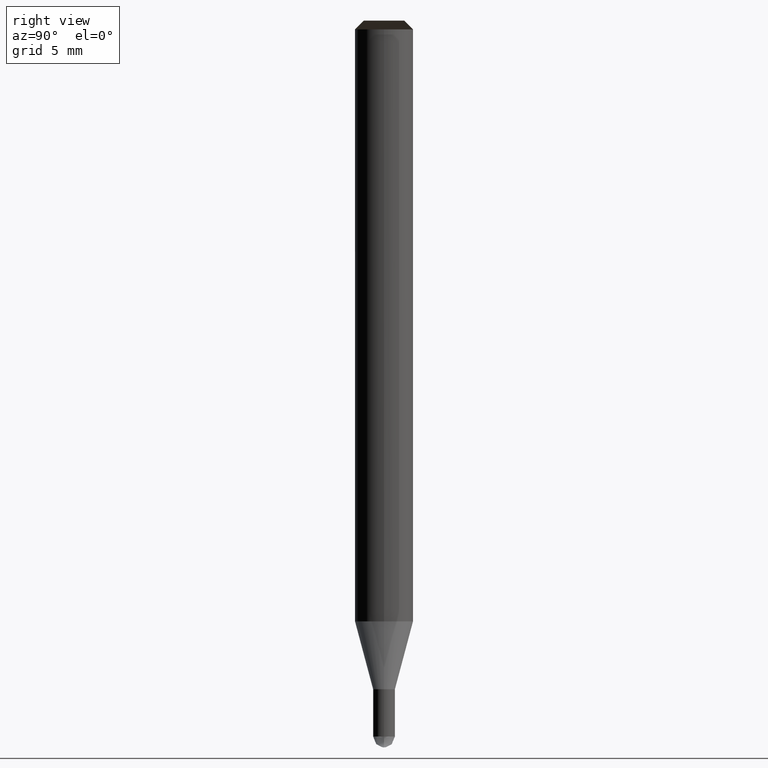
[diagram: clean part render]
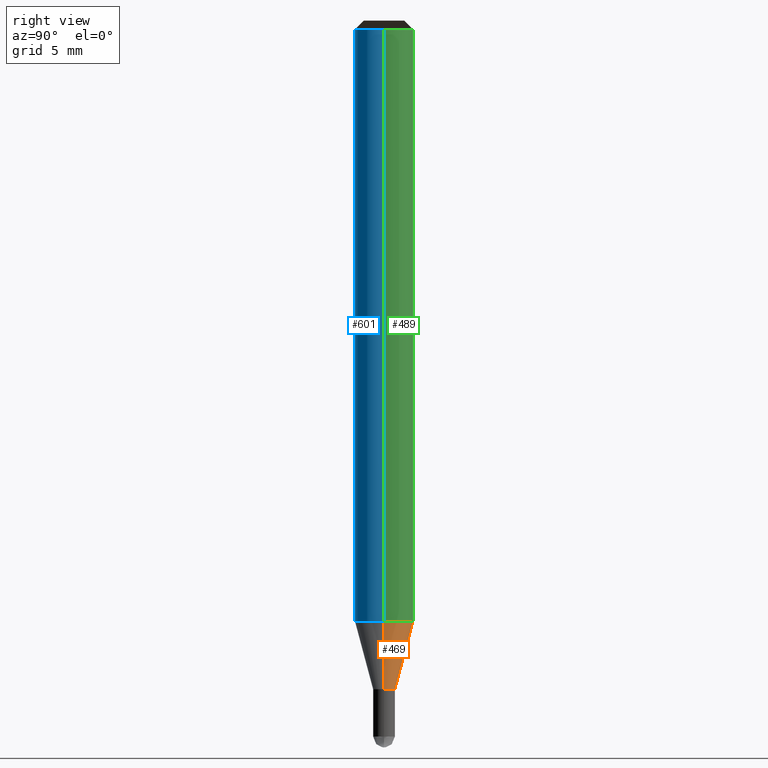
[diagram: same view with three faces highlighted in distinct colors, each labeled with its STEP entity id]
A machine part, right view with three faces highlighted in distinct colors.
Their STEP definitions:

[orange] entity #469 — the highlighted face is a freeform B-spline surface patch.
#268=CARTESIAN_POINT('',(0.75,0.0,-4.665063509461));
#269=CARTESIAN_POINT('',(0.75,0.75,-4.665063509461));
#270=CARTESIAN_POINT('',(0.0,0.75,-4.665063509461));
#271=CARTESIAN_POINT('',(-0.75,0.75,-4.665063509461));
#272=CARTESIAN_POINT('',(-0.75,0.0,-4.665063509461));
#273=CARTESIAN_POINT('',(2.0,0.0,0.0));
#274=CARTESIAN_POINT('',(2.0,2.0,0.0));
#275=CARTESIAN_POINT('',(0.0,2.0,0.0));
#276=CARTESIAN_POINT('',(-2.0,2.0,0.0));
#277=CARTESIAN_POINT('',(-2.0,0.0,0.0));
#450=(
BOUNDED_SURFACE()
B_SPLINE_SURFACE(1,2,(
(#268,#269,#270,#271,#272),
(#273,#274,#275,#276,#277)
), .UNSPECIFIED.,.F.,.F.,.F.)
B_SPLINE_SURFACE_WITH_KNOTS((2,2),(3,2,3),(
0.0,1.0),(
0.0,0.5,1.0), .UNSPECIFIED.)
GEOMETRIC_REPRESENTATION_ITEM()
RATIONAL_B_SPLINE_SURFACE(((1.0,0.707106781187,1.0,0.707106781187,1.0),
(1.0,0.707106781187,1.0,0.707106781187,1.0)
))
REPRESENTATION_ITEM('')
SURFACE()
);
#451=(
BOUNDED_CURVE()
B_SPLINE_CURVE(2,(#273,#274,#275,#276,#277),.UNSPECIFIED.,.F.,.F.)
B_SPLINE_CURVE_WITH_KNOTS((3,2,3),
(0.0,0.5,1.0),.UNSPECIFIED.)
CURVE()
GEOMETRIC_REPRESENTATION_ITEM()
RATIONAL_B_SPLINE_CURVE((1.0,0.707106781187,1.0,0.707106781187,1.0))
REPRESENTATION_ITEM('')
);
#452=(
BOUNDED_CURVE()
B_SPLINE_CURVE(1,(#277,#272),.UNSPECIFIED.,.F.,.F.)
B_SPLINE_CURVE_WITH_KNOTS((2,2),
(0.0,1.0),.UNSPECIFIED.)
CURVE()
GEOMETRIC_REPRESENTATION_ITEM()
RATIONAL_B_SPLINE_CURVE((1.0,1.0))
REPRESENTATION_ITEM('')
);
#453=(
BOUNDED_CURVE()
B_SPLINE_CURVE(2,(#272,#271,#270,#269,#268),.UNSPECIFIED.,.F.,.F.)
B_SPLINE_CURVE_WITH_KNOTS((3,2,3),
(0.0,0.5,1.0),.UNSPECIFIED.)
CURVE()
GEOMETRIC_REPRESENTATION_ITEM()
RATIONAL_B_SPLINE_CURVE((1.0,0.707106781187,1.0,0.707106781187,1.0))
REPRESENTATION_ITEM('')
);
#454=(
BOUNDED_CURVE()
B_SPLINE_CURVE(1,(#268,#273),.UNSPECIFIED.,.F.,.F.)
B_SPLINE_CURVE_WITH_KNOTS((2,2),
(0.0,1.0),.UNSPECIFIED.)
CURVE()
GEOMETRIC_REPRESENTATION_ITEM()
RATIONAL_B_SPLINE_CURVE((1.0,1.0))
REPRESENTATION_ITEM('')
);
#455=VERTEX_POINT('',#268);
#456=VERTEX_POINT('',#272);
#457=VERTEX_POINT('',#273);
#458=VERTEX_POINT('',#277);
#459=EDGE_CURVE('',#457,#458,#451,.T.);
#460=EDGE_CURVE('',#458,#456,#452,.T.);
#461=EDGE_CURVE('',#456,#455,#453,.T.);
#462=EDGE_CURVE('',#455,#457,#454,.T.);
#463=ORIENTED_EDGE('',*,*,#459,.T.);
#464=ORIENTED_EDGE('',*,*,#460,.T.);
#465=ORIENTED_EDGE('',*,*,#461,.T.);
#466=ORIENTED_EDGE('',*,*,#462,.T.);
#467=EDGE_LOOP('',(#463,#464,#465,#466));
#468=FACE_OUTER_BOUND('',#467,.T.);
#469=ADVANCED_FACE('',(#468),#450,.T.);

[blue] entity #601 — the highlighted face is a freeform B-spline surface patch.
#273=CARTESIAN_POINT('',(2.0,0.0,0.0));
#277=CARTESIAN_POINT('',(-2.0,0.0,0.0));
#278=CARTESIAN_POINT('',(2.0,0.0,40.734));
#282=CARTESIAN_POINT('',(-2.0,0.0,40.734));
#292=CARTESIAN_POINT('',(-2.0,-2.0,0.0));
#293=CARTESIAN_POINT('',(0.0,-2.0,0.0));
#294=CARTESIAN_POINT('',(2.0,-2.0,0.0));
#295=CARTESIAN_POINT('',(-2.0,-2.0,40.734));
#296=CARTESIAN_POINT('',(0.0,-2.0,40.734));
#297=CARTESIAN_POINT('',(2.0,-2.0,40.734));
#582=(
BOUNDED_SURFACE()
B_SPLINE_SURFACE(1,2,(
(#277,#292,#293,#294,#273),
(#282,#295,#296,#297,#278)
), .UNSPECIFIED.,.F.,.F.,.F.)
B_SPLINE_SURFACE_WITH_KNOTS((2,2),(3,2,3),(
0.0,1.0),(
0.0,0.5,1.0), .UNSPECIFIED.)
GEOMETRIC_REPRESENTATION_ITEM()
RATIONAL_B_SPLINE_SURFACE(((1.0,0.707106781187,1.0,0.707106781187,1.0),
(1.0,0.707106781187,1.0,0.707106781187,1.0)
))
REPRESENTATION_ITEM('')
SURFACE()
);
#583=(
BOUNDED_CURVE()
B_SPLINE_CURVE(1,(#282,#277),.UNSPECIFIED.,.F.,.F.)
B_SPLINE_CURVE_WITH_KNOTS((2,2),
(0.0,1.0),.UNSPECIFIED.)
CURVE()
GEOMETRIC_REPRESENTATION_ITEM()
RATIONAL_B_SPLINE_CURVE((1.0,1.0))
REPRESENTATION_ITEM('')
);
#584=(
BOUNDED_CURVE()
B_SPLINE_CURVE(2,(#277,#292,#293,#294,#273),.UNSPECIFIED.,.F.,.F.)
B_SPLINE_CURVE_WITH_KNOTS((3,2,3),
(0.0,0.5,1.0),.UNSPECIFIED.)
CURVE()
GEOMETRIC_REPRESENTATION_ITEM()
RATIONAL_B_SPLINE_CURVE((1.0,0.707106781187,1.0,0.707106781187,1.0))
REPRESENTATION_ITEM('')
);
#585=(
BOUNDED_CURVE()
B_SPLINE_CURVE(1,(#273,#278),.UNSPECIFIED.,.F.,.F.)
B_SPLINE_CURVE_WITH_KNOTS((2,2),
(0.0,1.0),.UNSPECIFIED.)
CURVE()
GEOMETRIC_REPRESENTATION_ITEM()
RATIONAL_B_SPLINE_CURVE((1.0,1.0))
REPRESENTATION_ITEM('')
);
#586=(
BOUNDED_CURVE()
B_SPLINE_CURVE(2,(#278,#297,#296,#295,#282),.UNSPECIFIED.,.F.,.F.)
B_SPLINE_CURVE_WITH_KNOTS((3,2,3),
(0.0,0.5,1.0),.UNSPECIFIED.)
CURVE()
GEOMETRIC_REPRESENTATION_ITEM()
RATIONAL_B_SPLINE_CURVE((1.0,0.707106781187,1.0,0.707106781187,1.0))
REPRESENTATION_ITEM('')
);
#587=VERTEX_POINT('',#273);
#588=VERTEX_POINT('',#277);
#589=VERTEX_POINT('',#278);
#590=VERTEX_POINT('',#282);
#591=EDGE_CURVE('',#590,#588,#583,.T.);
#592=EDGE_CURVE('',#588,#587,#584,.T.);
#593=EDGE_CURVE('',#587,#589,#585,.T.);
#594=EDGE_CURVE('',#589,#590,#586,.T.);
#595=ORIENTED_EDGE('',*,*,#591,.T.);
#596=ORIENTED_EDGE('',*,*,#592,.T.);
#597=ORIENTED_EDGE('',*,*,#593,.T.);
#598=ORIENTED_EDGE('',*,*,#594,.T.);
#599=EDGE_LOOP('',(#595,#596,#597,#598));
#600=FACE_OUTER_BOUND('',#599,.T.);
#601=ADVANCED_FACE('',(#600),#582,.T.);

[green] entity #489 — the highlighted face is a freeform B-spline surface patch.
#273=CARTESIAN_POINT('',(2.0,0.0,0.0));
#274=CARTESIAN_POINT('',(2.0,2.0,0.0));
#275=CARTESIAN_POINT('',(0.0,2.0,0.0));
#276=CARTESIAN_POINT('',(-2.0,2.0,0.0));
#277=CARTESIAN_POINT('',(-2.0,0.0,0.0));
#278=CARTESIAN_POINT('',(2.0,0.0,40.734));
#279=CARTESIAN_POINT('',(2.0,2.0,40.734));
#280=CARTESIAN_POINT('',(0.0,2.0,40.734));
#281=CARTESIAN_POINT('',(-2.0,2.0,40.734));
#282=CARTESIAN_POINT('',(-2.0,0.0,40.734));
#470=(
BOUNDED_SURFACE()
B_SPLINE_SURFACE(1,2,(
(#273,#274,#275,#276,#277),
(#278,#279,#280,#281,#282)
), .UNSPECIFIED.,.F.,.F.,.F.)
B_SPLINE_SURFACE_WITH_KNOTS((2,2),(3,2,3),(
0.0,1.0),(
0.0,0.5,1.0), .UNSPECIFIED.)
GEOMETRIC_REPRESENTATION_ITEM()
RATIONAL_B_SPLINE_SURFACE(((1.0,0.707106781187,1.0,0.707106781187,1.0),
(1.0,0.707106781187,1.0,0.707106781187,1.0)
))
REPRESENTATION_ITEM('')
SURFACE()
);
#471=(
BOUNDED_CURVE()
B_SPLINE_CURVE(2,(#278,#279,#280,#281,#282),.UNSPECIFIED.,.F.,.F.)
B_SPLINE_CURVE_WITH_KNOTS((3,2,3),
(0.0,0.5,1.0),.UNSPECIFIED.)
CURVE()
GEOMETRIC_REPRESENTATION_ITEM()
RATIONAL_B_SPLINE_CURVE((1.0,0.707106781187,1.0,0.707106781187,1.0))
REPRESENTATION_ITEM('')
);
#472=(
BOUNDED_CURVE()
B_SPLINE_CURVE(1,(#282,#277),.UNSPECIFIED.,.F.,.F.)
B_SPLINE_CURVE_WITH_KNOTS((2,2),
(0.0,1.0),.UNSPECIFIED.)
CURVE()
GEOMETRIC_REPRESENTATION_ITEM()
RATIONAL_B_SPLINE_CURVE((1.0,1.0))
REPRESENTATION_ITEM('')
);
#473=(
BOUNDED_CURVE()
B_SPLINE_CURVE(2,(#277,#276,#275,#274,#273),.UNSPECIFIED.,.F.,.F.)
B_SPLINE_CURVE_WITH_KNOTS((3,2,3),
(0.0,0.5,1.0),.UNSPECIFIED.)
CURVE()
GEOMETRIC_REPRESENTATION_ITEM()
RATIONAL_B_SPLINE_CURVE((1.0,0.707106781187,1.0,0.707106781187,1.0))
REPRESENTATION_ITEM('')
);
#474=(
BOUNDED_CURVE()
B_SPLINE_CURVE(1,(#273,#278),.UNSPECIFIED.,.F.,.F.)
B_SPLINE_CURVE_WITH_KNOTS((2,2),
(0.0,1.0),.UNSPECIFIED.)
CURVE()
GEOMETRIC_REPRESENTATION_ITEM()
RATIONAL_B_SPLINE_CURVE((1.0,1.0))
REPRESENTATION_ITEM('')
);
#475=VERTEX_POINT('',#273);
#476=VERTEX_POINT('',#277);
#477=VERTEX_POINT('',#278);
#478=VERTEX_POINT('',#282);
#479=EDGE_CURVE('',#477,#478,#471,.T.);
#480=EDGE_CURVE('',#478,#476,#472,.T.);
#481=EDGE_CURVE('',#476,#475,#473,.T.);
#482=EDGE_CURVE('',#475,#477,#474,.T.);
#483=ORIENTED_EDGE('',*,*,#479,.T.);
#484=ORIENTED_EDGE('',*,*,#480,.T.);
#485=ORIENTED_EDGE('',*,*,#481,.T.);
#486=ORIENTED_EDGE('',*,*,#482,.T.);
#487=EDGE_LOOP('',(#483,#484,#485,#486));
#488=FACE_OUTER_BOUND('',#487,.T.);
#489=ADVANCED_FACE('',(#488),#470,.T.);